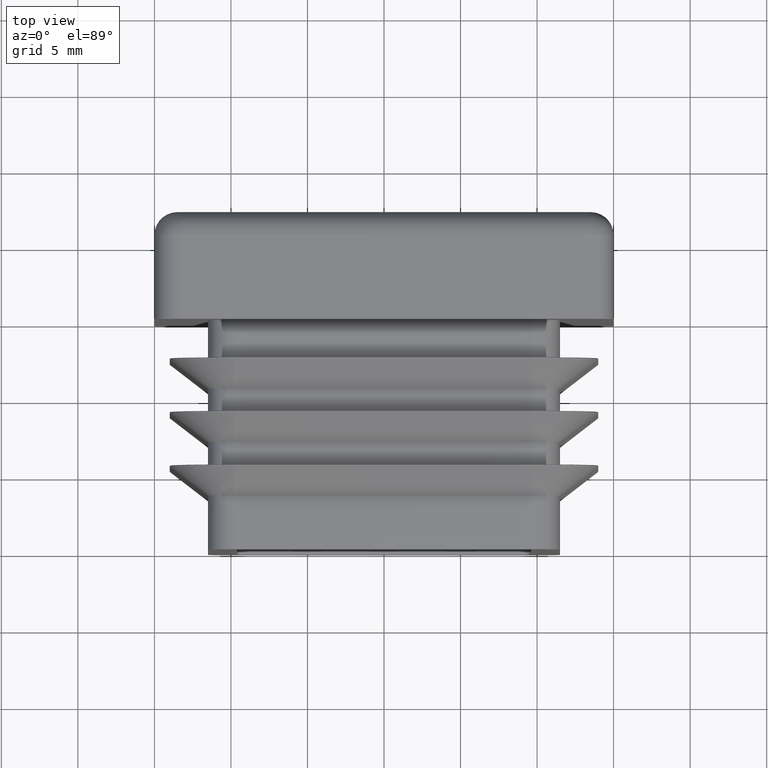
[diagram: clean part render]
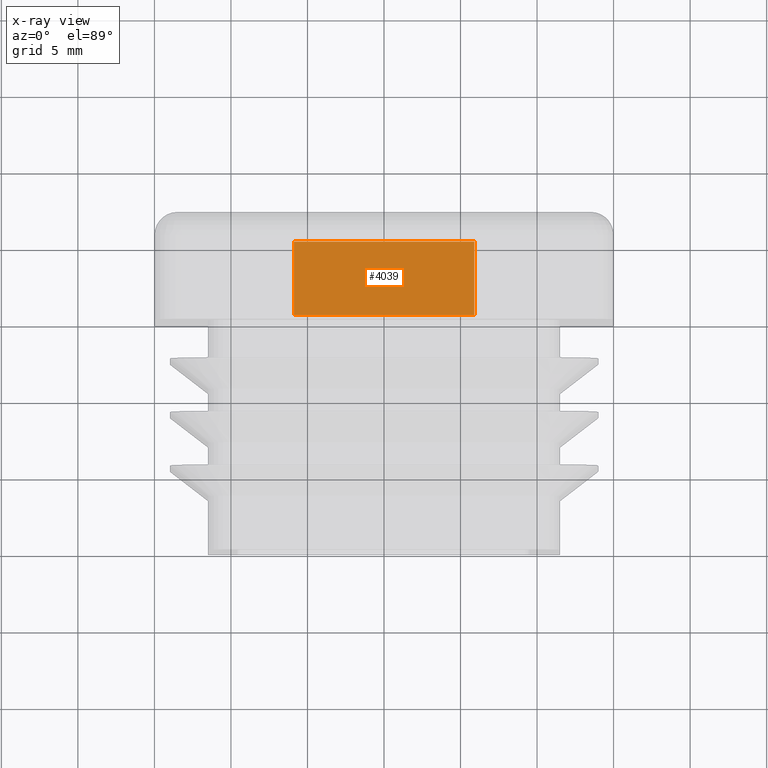
[diagram: x-ray — body ghosted, one internal face saturated and labeled with its STEP entity id]
A machine part, top view, then the same camera in x-ray: the body is ghosted and one INTERNAL B-rep face — a face not visible from any outside direction — is saturated and labeled: STEP entity #4039.
In plain terms, the highlighted planar face has unit normal (0, -0, 1).
Its self-contained STEP definition (entity closure, byte-faithful):
#518 = DIRECTION ( 'NONE',  ( 0.000000000000000000, -0.000000000000000000, 1.000000000000000000 ) ) ;
#1165 = EDGE_LOOP ( 'NONE', ( #18872, #2807, #5002, #15065 ) ) ;
#1548 = DIRECTION ( 'NONE',  ( -0.000000000000000000, -1.000000000000000000, -0.000000000000000000 ) ) ;
#2807 = ORIENTED_EDGE ( 'NONE', *, *, #14808, .T. ) ;
#3864 = CARTESIAN_POINT ( 'NONE',  ( 5.899999999999999467, 0.5999999999999998668, -5.899999999999999467 ) ) ;
#3997 = PLANE ( 'NONE',  #20458 ) ;
#4039 = ADVANCED_FACE ( 'NONE', ( #4474 ), #3997, .F. ) ;
#4285 = DIRECTION ( 'NONE',  ( 1.000000000000000000, 0.000000000000000000, 0.000000000000000000 ) ) ;
#4474 = FACE_OUTER_BOUND ( 'NONE', #1165, .T. ) ;
#4494 = CARTESIAN_POINT ( 'NONE',  ( -5.899999999999999467, 5.399999999999998579, -5.899999999999999467 ) ) ;
#4523 = EDGE_CURVE ( 'NONE', #7079, #6502, #10574, .T. ) ;
#5002 = ORIENTED_EDGE ( 'NONE', *, *, #19113, .T. ) ;
#5904 = VERTEX_POINT ( 'NONE', #8493 ) ;
#6497 = CARTESIAN_POINT ( 'NONE',  ( -5.899999999999999467, 22.18772003600251708, -5.899999999999999467 ) ) ;
#6502 = VERTEX_POINT ( 'NONE', #11005 ) ;
#6560 = DIRECTION ( 'NONE',  ( -0.000000000000000000, -1.000000000000000000, -0.000000000000000000 ) ) ;
#7079 = VERTEX_POINT ( 'NONE', #3864 ) ;
#7174 = LINE ( 'NONE', #8304, #19402 ) ;
#8095 = VECTOR ( 'NONE', #4285, 1000.000000000000000 ) ;
#8304 = CARTESIAN_POINT ( 'NONE',  ( 5.899999999999999467, 22.18772003600251708, -5.899999999999999467 ) ) ;
#8493 = CARTESIAN_POINT ( 'NONE',  ( 5.899999999999999467, 5.399999999999998579, -5.899999999999999467 ) ) ;
#9239 = CARTESIAN_POINT ( 'NONE',  ( 5.899999999999999467, 0.5999999999999998668, -5.899999999999999467 ) ) ;
#10320 = VECTOR ( 'NONE', #17414, 1000.000000000000000 ) ;
#10574 = LINE ( 'NONE', #9239, #10320 ) ;
#10606 = VERTEX_POINT ( 'NONE', #4494 ) ;
#10887 = VECTOR ( 'NONE', #6560, 1000.000000000000000 ) ;
#11005 = CARTESIAN_POINT ( 'NONE',  ( -5.899999999999999467, 0.5999999999999998668, -5.899999999999999467 ) ) ;
#13971 = CARTESIAN_POINT ( 'NONE',  ( 5.899999999999999467, 22.18772003600251708, -5.899999999999999467 ) ) ;
#14472 = CARTESIAN_POINT ( 'NONE',  ( 5.899999999999999467, 5.399999999999998579, -5.899999999999999467 ) ) ;
#14808 = EDGE_CURVE ( 'NONE', #10606, #5904, #17127, .T. ) ;
#15065 = ORIENTED_EDGE ( 'NONE', *, *, #4523, .T. ) ;
#17127 = LINE ( 'NONE', #14472, #8095 ) ;
#17414 = DIRECTION ( 'NONE',  ( -1.000000000000000000, 0.000000000000000000, 0.000000000000000000 ) ) ;
#17777 = LINE ( 'NONE', #6497, #10887 ) ;
#18872 = ORIENTED_EDGE ( 'NONE', *, *, #20685, .F. ) ;
#19113 = EDGE_CURVE ( 'NONE', #5904, #7079, #7174, .T. ) ;
#19402 = VECTOR ( 'NONE', #1548, 1000.000000000000000 ) ;
#20458 = AXIS2_PLACEMENT_3D ( 'NONE', #13971, #518, #20933 ) ;
#20685 = EDGE_CURVE ( 'NONE', #10606, #6502, #17777, .T. ) ;
#20933 = DIRECTION ( 'NONE',  ( 1.000000000000000000, 0.000000000000000000, -0.000000000000000000 ) ) ;